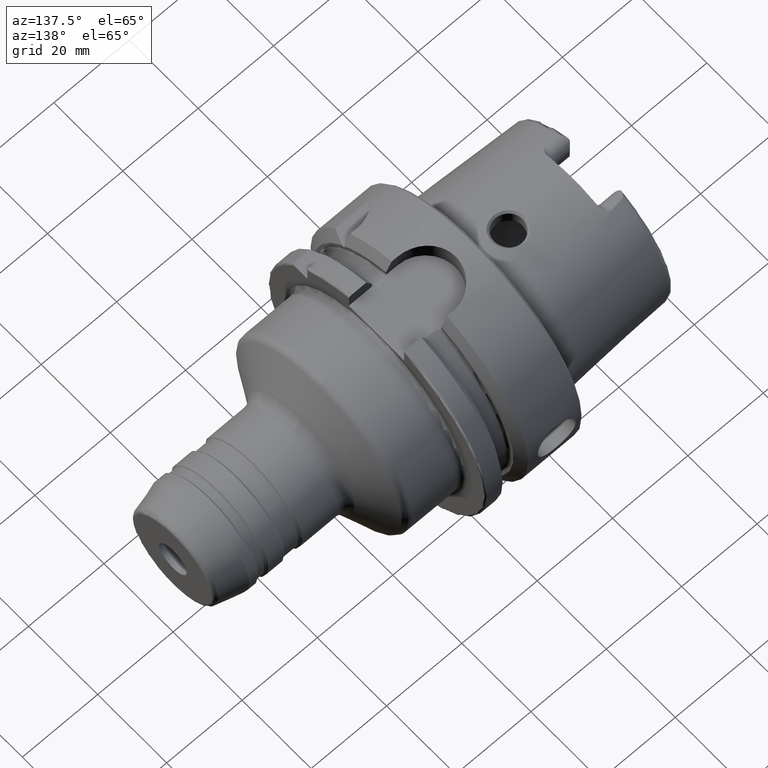
[diagram: clean part render]
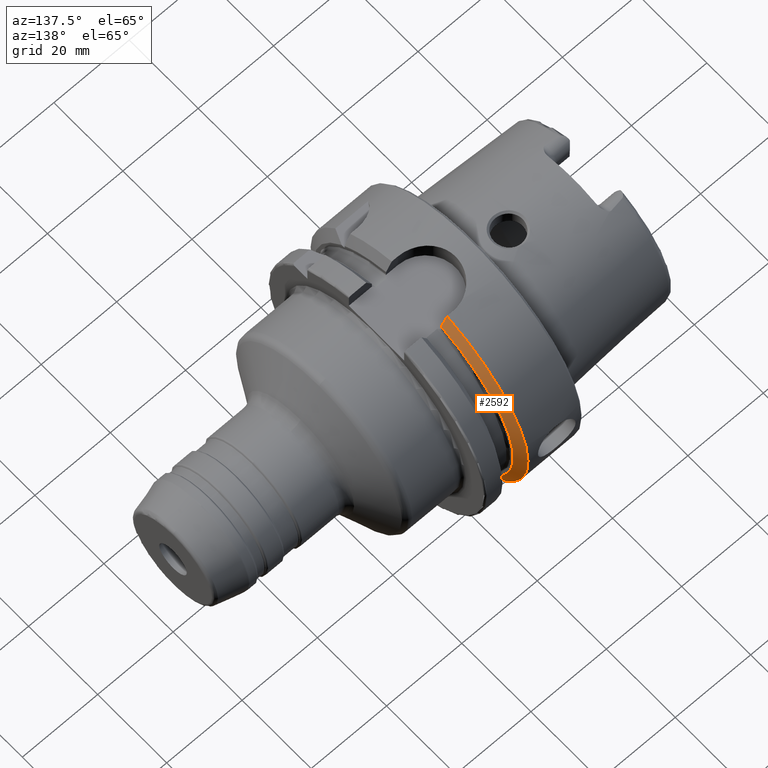
[diagram: same view with one face highlighted and labeled with its STEP entity id]
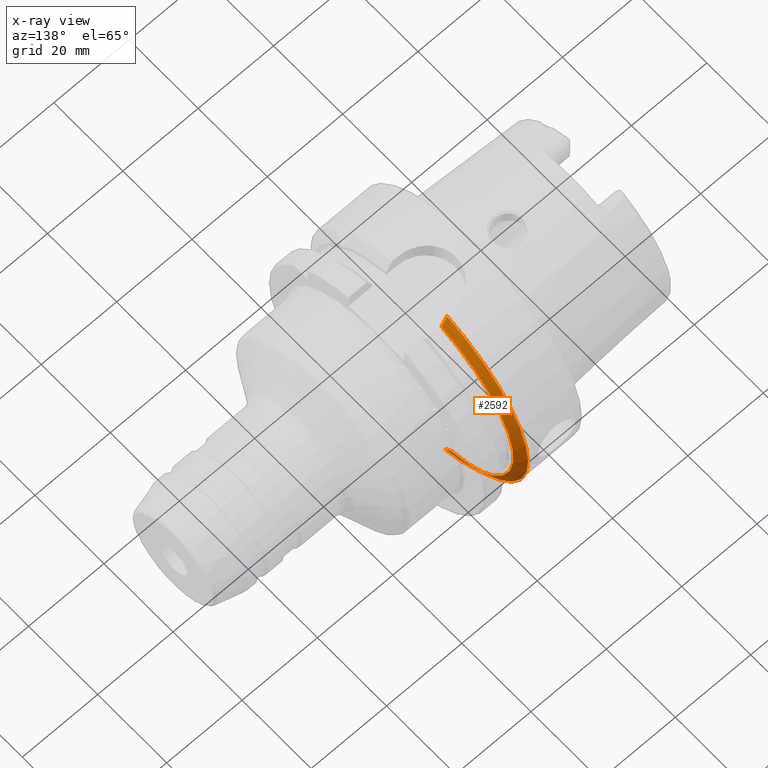
[diagram: x-ray of the same camera — body ghosted, the highlighted face saturated]
A machine part, auxiliary view. The second image highlights one B-rep face of the part: STEP entity #2592.
The next image is the same camera in x-ray: the body ghosted, the highlighted face saturated — about 5% of this face is hidden behind the body in this view.
In plain terms, the highlighted conical surface has half-angle 60 deg.
Its self-contained STEP definition (entity closure, byte-faithful):
#90=(
BOUNDED_CURVE()
B_SPLINE_CURVE(2,(#5180,#5181,#5182),.UNSPECIFIED.,.F.,.F.)
B_SPLINE_CURVE_WITH_KNOTS((3,3),(0.,0.311314369989023),.UNSPECIFIED.)
CURVE()
GEOMETRIC_REPRESENTATION_ITEM()
RATIONAL_B_SPLINE_CURVE((1.,1.00102053193627,1.))
REPRESENTATION_ITEM('')
);
#91=(
BOUNDED_CURVE()
B_SPLINE_CURVE(2,(#5191,#5192,#5193),.UNSPECIFIED.,.F.,.F.)
B_SPLINE_CURVE_WITH_KNOTS((3,3),(0.,0.308905667770379),.UNSPECIFIED.)
CURVE()
GEOMETRIC_REPRESENTATION_ITEM()
RATIONAL_B_SPLINE_CURVE((1.,1.00099999355806,1.))
REPRESENTATION_ITEM('')
);
#429=CONICAL_SURFACE('',#2902,30.1987976320958,1.0471975511966);
#511=FACE_OUTER_BOUND('',#653,.T.);
#653=EDGE_LOOP('',(#2154,#2155,#2156,#2157));
#860=CIRCLE('',#2884,31.5);
#869=CIRCLE('',#2903,28.8975952641916);
#1135=VERTEX_POINT('',#5021);
#1136=VERTEX_POINT('',#5023);
#1165=VERTEX_POINT('',#5179);
#1167=VERTEX_POINT('',#5190);
#1487=EDGE_CURVE('',#1136,#1135,#860,.T.);
#1527=EDGE_CURVE('',#1165,#1136,#90,.T.);
#1530=EDGE_CURVE('',#1135,#1167,#91,.T.);
#1531=EDGE_CURVE('',#1165,#1167,#869,.T.);
#2154=ORIENTED_EDGE('',*,*,#1527,.T.);
#2155=ORIENTED_EDGE('',*,*,#1487,.T.);
#2156=ORIENTED_EDGE('',*,*,#1530,.T.);
#2157=ORIENTED_EDGE('',*,*,#1531,.F.);
#2592=ADVANCED_FACE('',(#511),#429,.T.);
#2884=AXIS2_PLACEMENT_3D('',#5024,#3522,#3523);
#2902=AXIS2_PLACEMENT_3D('',#5189,#3577,#3578);
#2903=AXIS2_PLACEMENT_3D('',#5194,#3579,#3580);
#3522=DIRECTION('center_axis',(1.,0.,0.));
#3523=DIRECTION('ref_axis',(0.,0.,-1.));
#3577=DIRECTION('center_axis',(-1.,0.,0.));
#3578=DIRECTION('ref_axis',(0.,1.,0.));
#3579=DIRECTION('center_axis',(1.,0.,0.));
#3580=DIRECTION('ref_axis',(0.,0.,-1.));
#5021=CARTESIAN_POINT('',(14.6225009252407,8.,30.4671954731642));
#5023=CARTESIAN_POINT('',(14.6225009252407,9.,-30.1869176962472));
#5024=CARTESIAN_POINT('Origin',(14.6225009252407,0.,0.));
#5179=CARTESIAN_POINT('',(16.125,9.,-27.4603534582684));
#5180=CARTESIAN_POINT('Ctrl Pts',(16.125,9.,-27.4603534582684));
#5181=CARTESIAN_POINT('Ctrl Pts',(15.4092825889601,9.,-28.7648946319269));
#5182=CARTESIAN_POINT('Ctrl Pts',(14.6225009252407,9.00000000000001,-30.1869176962472));
#5189=CARTESIAN_POINT('Origin',(15.3737504626203,0.,0.));
#5190=CARTESIAN_POINT('',(16.125,8.,27.7681654426977));
#5191=CARTESIAN_POINT('Ctrl Pts',(14.6225009252407,8.,30.4671954731643));
#5192=CARTESIAN_POINT('Ctrl Pts',(15.408568570206,8.,29.0595327079894));
#5193=CARTESIAN_POINT('Ctrl Pts',(16.125,8.,27.7681654426977));
#5194=CARTESIAN_POINT('Origin',(16.125,0.,0.));